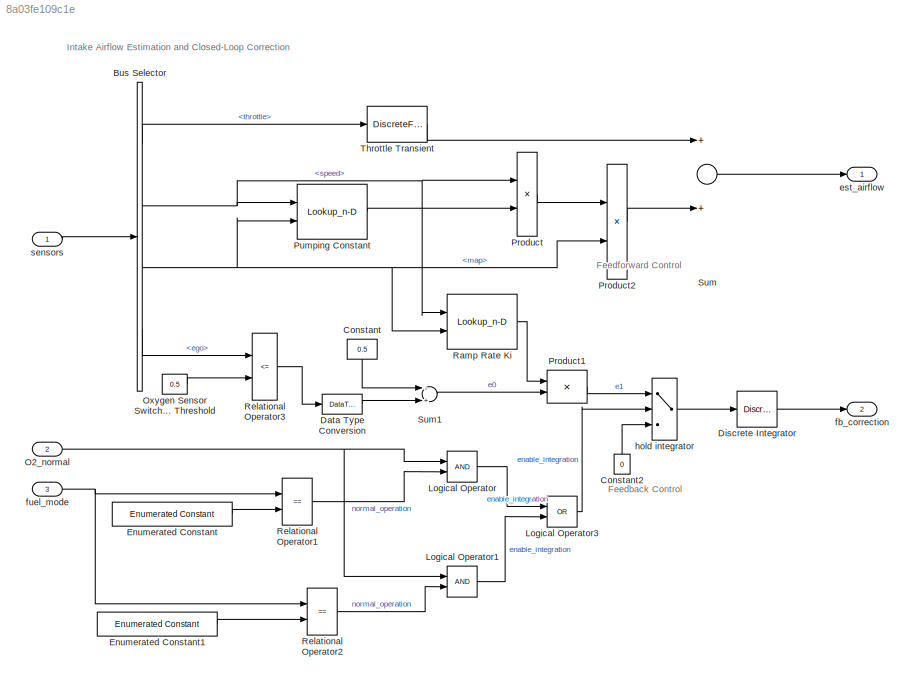
MODEL slx_8a03fe109c1e
KIND model
CONFIG AbsTol = auto
CONFIG EnableMultiTasking = off
CONFIG FixedStep = auto
CONFIG MaxStep = auto
CONFIG MinStep = auto
CONFIG RelTol = 1e-3
CONFIG SampleTimeConstraint = Unconstrained
CONFIG Solver = VariableStepAuto
CONFIG SolverName = VariableStepAuto
CONFIG StartTime = 0.0
CONFIG StopTime = 10.0
WORKSPACE source: MAT-file member
WORKSPACE PressVect = [0.05 0.1 0.15 0.2 0.25 0.3 0.35 0.4 0.45 0.5 0.55 0.6 ... (19 elements, 1x19)]
BLOCK [BusSelector] Bus Selector
  OutputAsBus = off
  OutputSignals = throttle,speed,map,ego
  Ports = [1, 4]
BLOCK [Constant] Constant
  OutDataTypeStr = s16En7
  Value = 0.5
BLOCK [Constant] Constant2
  OutDataTypeStr = uint8
  Value = 0
BLOCK [DataTypeConversion] Data Type Conversion
  OutDataTypeStr = s16En7
  RndMeth = Simplest
  SaturateOnIntegerOverflow = off
BLOCK [DiscreteIntegrator] Discrete Integrator
  ICPrevOutput = DiscIntNeverNeededParam
  ICPrevScaledInput = DiscIntNeverNeededParam
  InitialConditionSetting = Auto
  OutDataTypeStr = s16En15
  Ports = [1, 1]
  RndMeth = Simplest
  SampleTime = -1
BLOCK [Reference] Enumerated Constant  REF=simulink/Sources/Enumerated
Constant
  Ports = [0, 1]
  SourceBlock = simulink/Sources/Enumerated\nConstant
  SourceProductBaseCode = SL
  SourceProductName = Simulink
  SourceType = Enumerated Constant
BLOCK [Reference] Enumerated Constant1  REF=simulink/Sources/Enumerated
Constant
  Ports = [0, 1]
  SourceBlock = simulink/Sources/Enumerated\nConstant
  SourceProductBaseCode = SL
  SourceProductName = Simulink
  SourceType = Enumerated Constant
BLOCK [Logic] Logical Operator
  AllPortsSameDT = off
  OutDataTypeStr = boolean
  Ports = [2, 1]
BLOCK [Logic] Logical Operator1
  AllPortsSameDT = off
  OutDataTypeStr = boolean
  Ports = [2, 1]
BLOCK [Logic] Logical Operator3
  AllPortsSameDT = off
  Operator = OR
  OutDataTypeStr = boolean
  Ports = [2, 1]
BLOCK [Inport] O2_normal
  IconDisplay = Port number
  Port = 2
BLOCK [Constant] Oxygen Sensor Switching Threshold
  OutDataTypeStr = s16En7
  Value = 0.5
BLOCK [Product] Product
  InputSameDT = off
  OutDataTypeStr = s16En7
  Ports = [2, 1]
  RndMeth = Simplest
  SaturateOnIntegerOverflow = off
BLOCK [Product] Product1
  InputSameDT = off
  OutDataTypeStr = s16En15
  Ports = [2, 1]
  RndMeth = Simplest
  SaturateOnIntegerOverflow = off
BLOCK [Product] Product2
  InputSameDT = off
  OutDataTypeStr = s16En7
  Ports = [2, 1]
  RndMeth = Simplest
  SaturateOnIntegerOverflow = off
BLOCK [Lookup_n-D] Pumping Constant
  BreakpointsForDimension1 = SpeedVect
  BreakpointsForDimension2 = PressVect
  ExtrapMethod = Clip
  IndexSearchMethod = Linear search
  InputSameDT = off
  LookupTableObject = ''
  OutDataTypeStr = s16En15
  Ports = [2, 1]
  RndMeth = Simplest
  Table = PumpCon
  UseLastTableValue = on
BLOCK [Lookup_n-D] Ramp Rate Ki
  BreakpointsForDimension1 = RampRateKiX
  BreakpointsForDimension2 = RampRateKiY
  ExtrapMethod = Clip
  IndexSearchMethod = Linear search
  InputSameDT = off
  LookupTableObject = ''
  OutDataTypeStr = s16En15
  Ports = [2, 1]
  RndMeth = Simplest
  Table = RampRateKiZ
  UseLastTableValue = on
BLOCK [RelationalOperator] Relational Operator1
  Operator = ==
  OutDataTypeStr = boolean
  Ports = [2, 1]
BLOCK [RelationalOperator] Relational Operator2
  Operator = ==
  OutDataTypeStr = boolean
  Ports = [2, 1]
BLOCK [RelationalOperator] Relational Operator3
  InputSameDT = off
  Operator = <=
  OutDataTypeStr = boolean
  Ports = [2, 1]
BLOCK [Sum] Sum
  InputSameDT = off
  Inputs = 2
  OutDataTypeStr = s16En7
  Ports = [2, 1]
  RndMeth = Simplest
  SaturateOnIntegerOverflow = off
BLOCK [Sum] Sum1
  InputSameDT = off
  Inputs = -+
  OutDataTypeStr = s16En15
  Ports = [2, 1]
  RndMeth = Simplest
  SaturateOnIntegerOverflow = off
BLOCK [DiscreteFilter] Throttle Transient
  Denominator = [1 -.8]
  InputPortMap = u0
  Numerator = [.01 -.01]
  OutDataTypeStr = s16En7
  Ports = [1, 1]
  RndMeth = Simplest
  a0EqualsOne = on
BLOCK [Outport] est_airflow
  IconDisplay = Port number
  Unit = g/s
BLOCK [Outport] fb_correction
  IconDisplay = Port number
  Port = 2
BLOCK [Inport] fuel_mode
  IconDisplay = Port number
  Port = 3
BLOCK [Switch] hold integrator
  Criteria = u2 ~= 0
  InputSameDT = off
  OutDataTypeStr = s16En15
  RndMeth = Simplest
  SaturateOnIntegerOverflow = off
  Threshold = 1
BLOCK [Inport] sensors
  IconDisplay = Port number
  OutDataTypeStr = Bus: EngSensors
ANNOTATION (root): Feedback Control
ANNOTATION (root): Feedforward Control
ANNOTATION (root): Intake Airflow Estimation and Closed-Loop Correction
LINE Bus Selector:1 -> Throttle Transient:1
NET Bus Selector:2 -> Product:1, Pumping Constant:1, Ramp Rate Ki:1
NET Bus Selector:3 -> Product2:2, Pumping Constant:2, Ramp Rate Ki:2
LINE Bus Selector:4 -> Relational Operator3:1
LINE Constant2:1 -> hold integrator:3
LINE Constant:1 -> Sum1:1
LINE Data Type Conversion:1 -> Sum1:2
LINE Discrete Integrator:1 -> fb_correction:1
LINE Enumerated Constant1:1 -> Relational Operator2:2
LINE Enumerated Constant:1 -> Relational Operator1:2
LINE Logical Operator1:1 -> Logical Operator3:2
LINE Logical Operator3:1 -> hold integrator:2
LINE Logical Operator:1 -> Logical Operator3:1
NET O2_normal:1 -> Logical Operator1:1, Logical Operator:1
LINE Oxygen Sensor Switching Threshold:1 -> Relational Operator3:2
LINE Product1:1 -> hold integrator:1
LINE Product2:1 -> Sum:2
LINE Product:1 -> Product2:1
LINE Pumping Constant:1 -> Product:2
LINE Ramp Rate Ki:1 -> Product1:1
LINE Relational Operator1:1 -> Logical Operator:2
LINE Relational Operator2:1 -> Logical Operator1:2
LINE Relational Operator3:1 -> Data Type Conversion:1
LINE Sum1:1 -> Product1:2
LINE Sum:1 -> est_airflow:1
LINE Throttle Transient:1 -> Sum:1
NET fuel_mode:1 -> Relational Operator1:1, Relational Operator2:1
LINE hold integrator:1 -> Discrete Integrator:1
LINE sensors:1 -> Bus Selector:1
note: NET lines group one-source signal fan-out (src -> all destinations, sorted); 1:1 wires keep LINE
